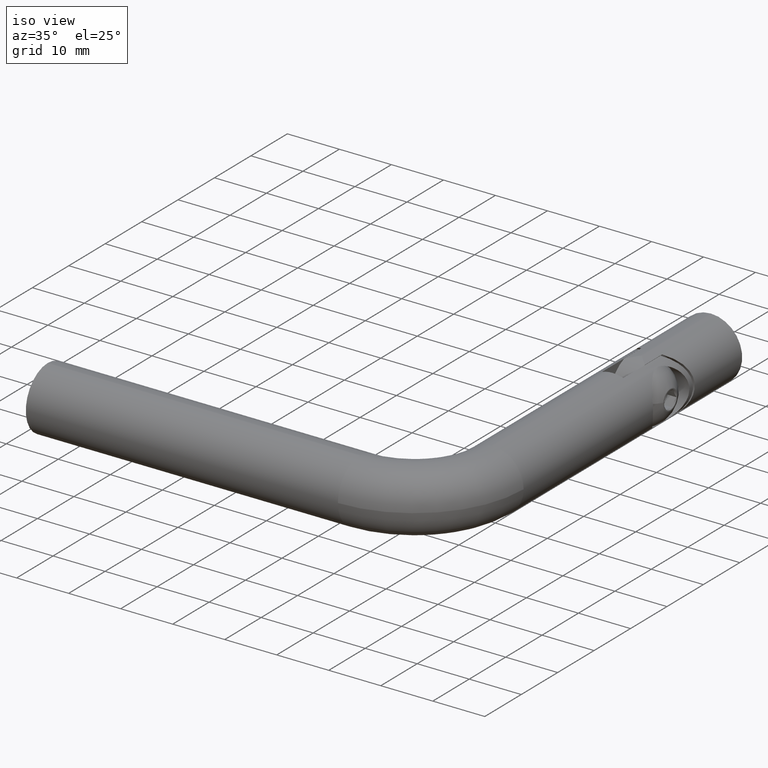
[diagram: clean part render]
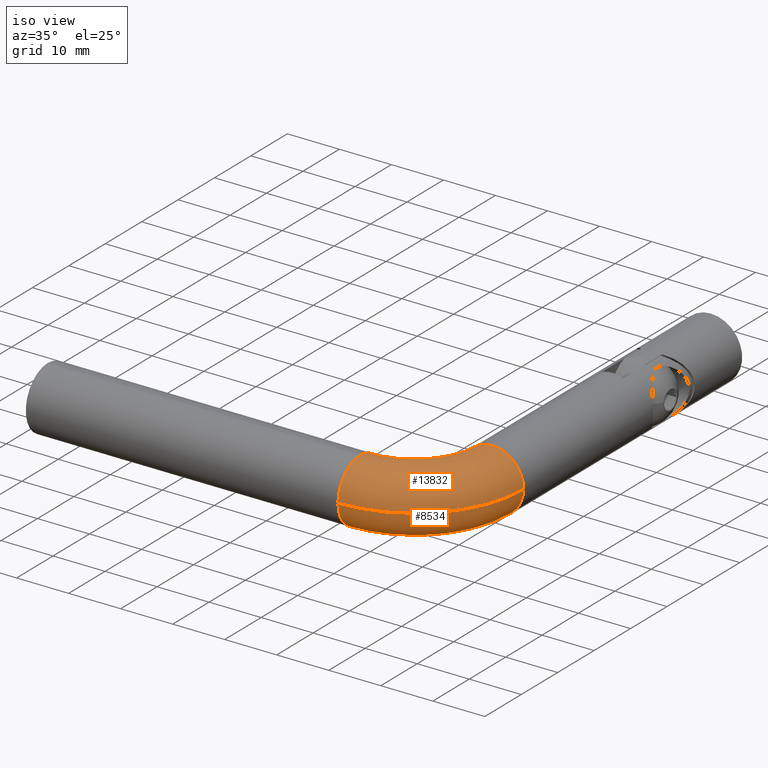
[diagram: same view with one multi-face feature highlighted, each face labeled with its STEP entity id]
A machine part, iso view. The highlighted faces form ONE feature: a constant-radius fillet chain: 2 tangent blend faces with common blend radius 6 mm. The faces share edges in the B-rep.
Their STEP definitions:
[1] entity #8534 (Torus):
#593 = EDGE_LOOP ( 'NONE', ( #10424, #12153, #7882, #3301, #831, #4168 ) ) ;
#734 = VERTEX_POINT ( 'NONE', #1536 ) ;
#831 = ORIENTED_EDGE ( 'NONE', *, *, #6668, .F. ) ;
#1220 = AXIS2_PLACEMENT_3D ( 'NONE', #11695, #4421, #11744 ) ;
#1524 = VERTEX_POINT ( 'NONE', #12468 ) ;
#1536 = CARTESIAN_POINT ( 'NONE',  ( 60.00000000000000000, -6.000000000000001776, 0.000000000000000000 ) ) ;
#1723 = AXIS2_PLACEMENT_3D ( 'NONE', #9105, #7986, #12747 ) ;
#2511 = EDGE_CURVE ( 'NONE', #7884, #1524, #3246, .T. ) ;
#3246 = CIRCLE ( 'NONE', #1723, 6.000000000000000888 ) ;
#3301 = ORIENTED_EDGE ( 'NONE', *, *, #4800, .T. ) ;
#3314 = DIRECTION ( 'NONE',  ( 0.000000000000000000, 0.000000000000000000, 1.000000000000000000 ) ) ;
#3406 = DIRECTION ( 'NONE',  ( -1.608122649676636601E-16, 1.000000000000000000, 0.000000000000000000 ) ) ;
#4168 = ORIENTED_EDGE ( 'NONE', *, *, #2511, .F. ) ;
#4421 = DIRECTION ( 'NONE',  ( 0.000000000000000000, 0.000000000000000000, 1.000000000000000000 ) ) ;
#4774 = CIRCLE ( 'NONE', #9041, 6.000000000000000888 ) ;
#4800 = EDGE_CURVE ( 'NONE', #9176, #5226, #7992, .T. ) ;
#5226 = VERTEX_POINT ( 'NONE', #7092 ) ;
#5244 = AXIS2_PLACEMENT_3D ( 'NONE', #8207, #3314, #15305 ) ;
#5890 = CIRCLE ( 'NONE', #14664, 21.00000000000000355 ) ;
#6035 = DIRECTION ( 'NONE',  ( 1.000000000000000000, 0.000000000000000000, 0.000000000000000000 ) ) ;
#6668 = EDGE_CURVE ( 'NONE', #1524, #5226, #13928, .T. ) ;
#6777 = EDGE_CURVE ( 'NONE', #734, #11070, #11337, .T. ) ;
#6985 = CARTESIAN_POINT ( 'NONE',  ( 81.00000000000000000, 15.00000000000000178, 0.000000000000000000 ) ) ;
#7016 = EDGE_CURVE ( 'NONE', #11070, #9176, #4774, .T. ) ;
#7092 = CARTESIAN_POINT ( 'NONE',  ( 68.99999999999998579, 14.99999999999999822, -7.347880794884114806E-16 ) ) ;
#7882 = ORIENTED_EDGE ( 'NONE', *, *, #7016, .T. ) ;
#7884 = VERTEX_POINT ( 'NONE', #6985 ) ;
#7902 = FACE_OUTER_BOUND ( 'NONE', #593, .T. ) ;
#7986 = DIRECTION ( 'NONE',  ( -1.608122649676636601E-16, 1.000000000000000000, 0.000000000000000000 ) ) ;
#7992 = CIRCLE ( 'NONE', #5244, 8.999999999999994671 ) ;
#8158 = EDGE_CURVE ( 'NONE', #734, #7884, #5890, .T. ) ;
#8207 = CARTESIAN_POINT ( 'NONE',  ( 60.00000000000000000, 15.00000000000000000, -7.347880794884120722E-16 ) ) ;
#8534 = ADVANCED_FACE ( 'NONE', ( #7902 ), #12222, .T. ) ;
#8680 = DIRECTION ( 'NONE',  ( 0.000000000000000000, 0.000000000000000000, -1.000000000000000000 ) ) ;
#9041 = AXIS2_PLACEMENT_3D ( 'NONE', #12188, #13390, #8680 ) ;
#9105 = CARTESIAN_POINT ( 'NONE',  ( 75.00000000000000000, 15.00000000000000000, 0.000000000000000000 ) ) ;
#9128 = AXIS2_PLACEMENT_3D ( 'NONE', #10422, #3406, #11764 ) ;
#9176 = VERTEX_POINT ( 'NONE', #11955 ) ;
#9926 = AXIS2_PLACEMENT_3D ( 'NONE', #13179, #6035, #10682 ) ;
#10109 = CARTESIAN_POINT ( 'NONE',  ( 60.00000000000000000, 7.347880794884120722E-16, -6.000000000000000888 ) ) ;
#10422 = CARTESIAN_POINT ( 'NONE',  ( 75.00000000000000000, 15.00000000000000000, 0.000000000000000000 ) ) ;
#10424 = ORIENTED_EDGE ( 'NONE', *, *, #8158, .F. ) ;
#10682 = DIRECTION ( 'NONE',  ( 0.000000000000000000, 0.000000000000000000, -1.000000000000000000 ) ) ;
#11070 = VERTEX_POINT ( 'NONE', #10109 ) ;
#11337 = CIRCLE ( 'NONE', #9926, 6.000000000000000888 ) ;
#11695 = CARTESIAN_POINT ( 'NONE',  ( 60.00000000000000000, 15.00000000000000000, 0.000000000000000000 ) ) ;
#11744 = DIRECTION ( 'NONE',  ( 1.000000000000000000, 0.000000000000000000, 0.000000000000000000 ) ) ;
#11764 = DIRECTION ( 'NONE',  ( 0.000000000000000000, 0.000000000000000000, -1.000000000000000000 ) ) ;
#11955 = CARTESIAN_POINT ( 'NONE',  ( 60.00000000000000000, 6.000000000000000888, -7.347880794884119736E-16 ) ) ;
#12153 = ORIENTED_EDGE ( 'NONE', *, *, #6777, .T. ) ;
#12188 = CARTESIAN_POINT ( 'NONE',  ( 60.00000000000000000, 0.000000000000000000, 0.000000000000000000 ) ) ;
#12222 = TOROIDAL_SURFACE ( 'NONE', #1220, 15.00000000000000000, 6.000000000000000888 ) ;
#12468 = CARTESIAN_POINT ( 'NONE',  ( 75.00000000000000000, 15.00000000000000000, -6.000000000000000888 ) ) ;
#12738 = CARTESIAN_POINT ( 'NONE',  ( 60.00000000000000000, 15.00000000000000000, 0.000000000000000000 ) ) ;
#12747 = DIRECTION ( 'NONE',  ( 0.000000000000000000, 0.000000000000000000, -1.000000000000000000 ) ) ;
#13179 = CARTESIAN_POINT ( 'NONE',  ( 60.00000000000000000, 0.000000000000000000, 0.000000000000000000 ) ) ;
#13390 = DIRECTION ( 'NONE',  ( 1.000000000000000000, 0.000000000000000000, 0.000000000000000000 ) ) ;
#13928 = CIRCLE ( 'NONE', #9128, 6.000000000000000888 ) ;
#14664 = AXIS2_PLACEMENT_3D ( 'NONE', #12738, #15071, #15115 ) ;
#15071 = DIRECTION ( 'NONE',  ( 0.000000000000000000, 0.000000000000000000, 1.000000000000000000 ) ) ;
#15115 = DIRECTION ( 'NONE',  ( 1.000000000000000000, 0.000000000000000000, 0.000000000000000000 ) ) ;
#15305 = DIRECTION ( 'NONE',  ( 1.000000000000000000, 0.000000000000000000, 0.000000000000000000 ) ) ;
[2] entity #13832 (Torus):
#193 = VERTEX_POINT ( 'NONE', #8357 ) ;
#734 = VERTEX_POINT ( 'NONE', #1536 ) ;
#832 = EDGE_CURVE ( 'NONE', #9176, #8178, #8768, .T. ) ;
#949 = ORIENTED_EDGE ( 'NONE', *, *, #4800, .F. ) ;
#1314 = TOROIDAL_SURFACE ( 'NONE', #10937, 15.00000000000000000, 6.000000000000000888 ) ;
#1346 = CARTESIAN_POINT ( 'NONE',  ( 75.00000000000000000, 15.00000000000000000, 0.000000000000000000 ) ) ;
#1536 = CARTESIAN_POINT ( 'NONE',  ( 60.00000000000000000, -6.000000000000001776, 0.000000000000000000 ) ) ;
#1640 = DIRECTION ( 'NONE',  ( 1.000000000000000000, 0.000000000000000000, 0.000000000000000000 ) ) ;
#1848 = CIRCLE ( 'NONE', #10844, 6.000000000000000888 ) ;
#2323 = ORIENTED_EDGE ( 'NONE', *, *, #15406, .T. ) ;
#2986 = EDGE_CURVE ( 'NONE', #5226, #193, #14200, .T. ) ;
#3204 = CARTESIAN_POINT ( 'NONE',  ( 60.00000000000000000, 0.000000000000000000, 0.000000000000000000 ) ) ;
#3314 = DIRECTION ( 'NONE',  ( 0.000000000000000000, 0.000000000000000000, 1.000000000000000000 ) ) ;
#3360 = EDGE_CURVE ( 'NONE', #193, #7884, #1848, .T. ) ;
#3826 = DIRECTION ( 'NONE',  ( -1.608122649676636601E-16, 1.000000000000000000, 0.000000000000000000 ) ) ;
#3964 = DIRECTION ( 'NONE',  ( 0.000000000000000000, 0.000000000000000000, -1.000000000000000000 ) ) ;
#4163 = CARTESIAN_POINT ( 'NONE',  ( 60.00000000000000000, 0.000000000000000000, 0.000000000000000000 ) ) ;
#4228 = CARTESIAN_POINT ( 'NONE',  ( 60.00000000000000000, 15.00000000000000000, 0.000000000000000000 ) ) ;
#4330 = DIRECTION ( 'NONE',  ( 1.000000000000000000, 0.000000000000000000, 0.000000000000000000 ) ) ;
#4800 = EDGE_CURVE ( 'NONE', #9176, #5226, #7992, .T. ) ;
#4959 = AXIS2_PLACEMENT_3D ( 'NONE', #1346, #3826, #14483 ) ;
#5226 = VERTEX_POINT ( 'NONE', #7092 ) ;
#5244 = AXIS2_PLACEMENT_3D ( 'NONE', #8207, #3314, #15305 ) ;
#5327 = DIRECTION ( 'NONE',  ( -1.608122649676636601E-16, 1.000000000000000000, 0.000000000000000000 ) ) ;
#5890 = CIRCLE ( 'NONE', #14664, 21.00000000000000355 ) ;
#6985 = CARTESIAN_POINT ( 'NONE',  ( 81.00000000000000000, 15.00000000000000178, 0.000000000000000000 ) ) ;
#7092 = CARTESIAN_POINT ( 'NONE',  ( 68.99999999999998579, 14.99999999999999822, -7.347880794884114806E-16 ) ) ;
#7131 = AXIS2_PLACEMENT_3D ( 'NONE', #4163, #1640, #3964 ) ;
#7581 = CARTESIAN_POINT ( 'NONE',  ( 75.00000000000000000, 15.00000000000000000, 0.000000000000000000 ) ) ;
#7884 = VERTEX_POINT ( 'NONE', #6985 ) ;
#7992 = CIRCLE ( 'NONE', #5244, 8.999999999999994671 ) ;
#8158 = EDGE_CURVE ( 'NONE', #734, #7884, #5890, .T. ) ;
#8178 = VERTEX_POINT ( 'NONE', #9259 ) ;
#8207 = CARTESIAN_POINT ( 'NONE',  ( 60.00000000000000000, 15.00000000000000000, -7.347880794884120722E-16 ) ) ;
#8357 = CARTESIAN_POINT ( 'NONE',  ( 75.00000000000000000, 15.00000000000000000, 6.000000000000000888 ) ) ;
#8456 = ORIENTED_EDGE ( 'NONE', *, *, #8158, .T. ) ;
#8471 = ORIENTED_EDGE ( 'NONE', *, *, #2986, .F. ) ;
#8768 = CIRCLE ( 'NONE', #7131, 6.000000000000000888 ) ;
#9176 = VERTEX_POINT ( 'NONE', #11955 ) ;
#9259 = CARTESIAN_POINT ( 'NONE',  ( 60.00000000000000000, 0.000000000000000000, 6.000000000000000888 ) ) ;
#9930 = FACE_OUTER_BOUND ( 'NONE', #9947, .T. ) ;
#9947 = EDGE_LOOP ( 'NONE', ( #2323, #8456, #14831, #8471, #949, #10044 ) ) ;
#10044 = ORIENTED_EDGE ( 'NONE', *, *, #832, .T. ) ;
#10288 = DIRECTION ( 'NONE',  ( 0.000000000000000000, 0.000000000000000000, 1.000000000000000000 ) ) ;
#10844 = AXIS2_PLACEMENT_3D ( 'NONE', #7581, #5327, #13600 ) ;
#10937 = AXIS2_PLACEMENT_3D ( 'NONE', #4228, #10288, #4330 ) ;
#11612 = DIRECTION ( 'NONE',  ( 0.000000000000000000, 0.000000000000000000, -1.000000000000000000 ) ) ;
#11955 = CARTESIAN_POINT ( 'NONE',  ( 60.00000000000000000, 6.000000000000000888, -7.347880794884119736E-16 ) ) ;
#12433 = CIRCLE ( 'NONE', #12846, 6.000000000000000888 ) ;
#12738 = CARTESIAN_POINT ( 'NONE',  ( 60.00000000000000000, 15.00000000000000000, 0.000000000000000000 ) ) ;
#12846 = AXIS2_PLACEMENT_3D ( 'NONE', #3204, #15334, #11612 ) ;
#13600 = DIRECTION ( 'NONE',  ( 0.000000000000000000, 0.000000000000000000, -1.000000000000000000 ) ) ;
#13832 = ADVANCED_FACE ( 'NONE', ( #9930 ), #1314, .T. ) ;
#14200 = CIRCLE ( 'NONE', #4959, 6.000000000000000888 ) ;
#14483 = DIRECTION ( 'NONE',  ( 0.000000000000000000, 0.000000000000000000, -1.000000000000000000 ) ) ;
#14664 = AXIS2_PLACEMENT_3D ( 'NONE', #12738, #15071, #15115 ) ;
#14831 = ORIENTED_EDGE ( 'NONE', *, *, #3360, .F. ) ;
#15071 = DIRECTION ( 'NONE',  ( 0.000000000000000000, 0.000000000000000000, 1.000000000000000000 ) ) ;
#15115 = DIRECTION ( 'NONE',  ( 1.000000000000000000, 0.000000000000000000, 0.000000000000000000 ) ) ;
#15305 = DIRECTION ( 'NONE',  ( 1.000000000000000000, 0.000000000000000000, 0.000000000000000000 ) ) ;
#15334 = DIRECTION ( 'NONE',  ( 1.000000000000000000, 0.000000000000000000, 0.000000000000000000 ) ) ;
#15406 = EDGE_CURVE ( 'NONE', #8178, #734, #12433, .T. ) ;